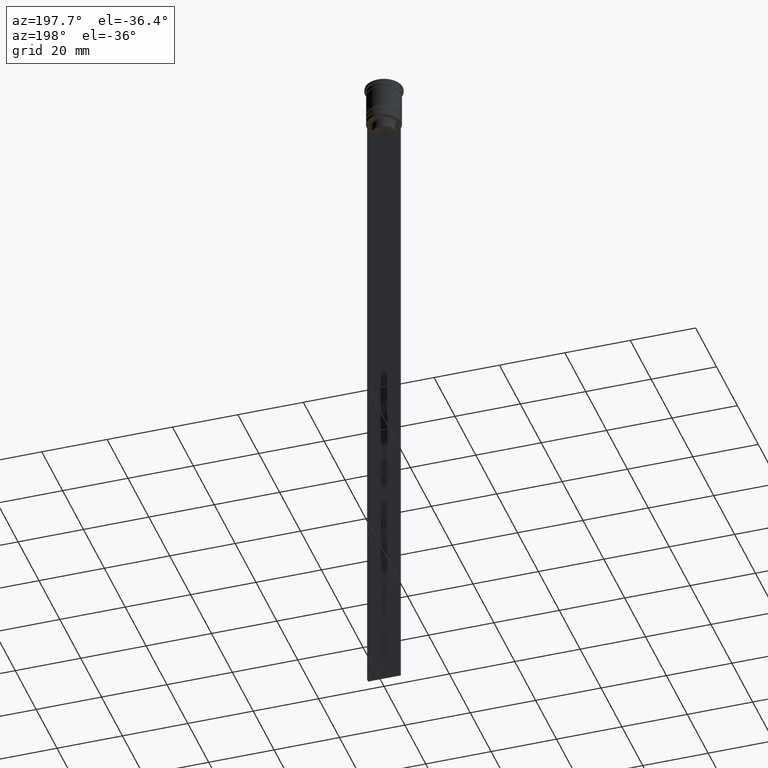
[diagram: clean part render]
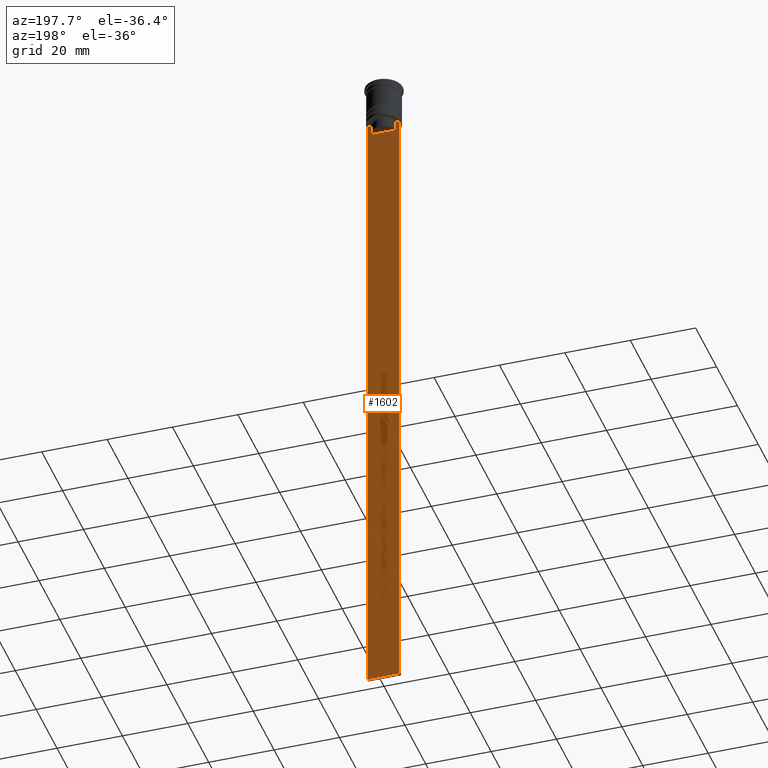
[diagram: same view with one face highlighted and labeled with its STEP entity id]
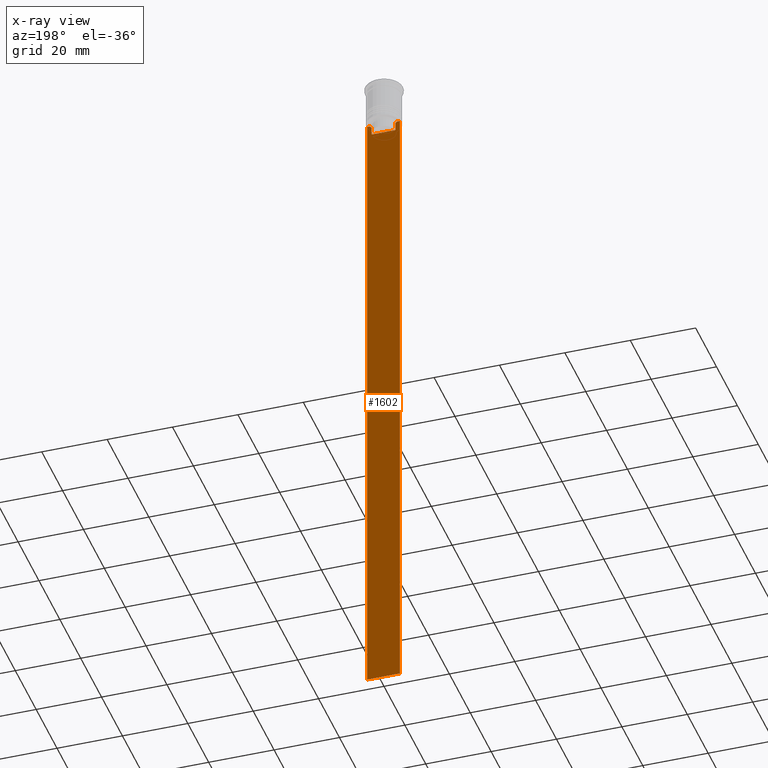
[diagram: x-ray of the same camera — body ghosted, the highlighted face saturated]
A machine part, auxiliary view. The second image highlights one B-rep face of the part: STEP entity #1602.
The next image is the same camera in x-ray: the body ghosted, the highlighted face saturated — about 0% of this face is hidden behind the body in this view.
In plain terms, the highlighted planar face has unit normal (0, -1, -0).
Its self-contained STEP definition (entity closure, byte-faithful):
#11 = DIRECTION ( 'NONE',  ( 0.000000000000000000, -1.000000000000000000, -0.000000000000000000 ) ) ;
#24 = PLANE ( 'NONE',  #2294 ) ;
#39 = VERTEX_POINT ( 'NONE', #414 ) ;
#69 = EDGE_CURVE ( 'NONE', #1440, #2305, #2077, .T. ) ;
#83 = CARTESIAN_POINT ( 'NONE',  ( -3.951794205566887985, 0.4999999999999991673, -12.66675159355373737 ) ) ;
#89 = DIRECTION ( 'NONE',  ( 1.000000000000000000, 0.000000000000000000, 0.000000000000000000 ) ) ;
#114 = CARTESIAN_POINT ( 'NONE',  ( -3.615591237958188042, 0.4999999999999991673, -13.00000000000000178 ) ) ;
#155 = ORIENTED_EDGE ( 'NONE', *, *, #515, .T. ) ;
#188 = CARTESIAN_POINT ( 'NONE',  ( 5.000000000000000000, 0.4999999999999991673, -212.5000000000000284 ) ) ;
#226 = LINE ( 'NONE', #1738, #1457 ) ;
#314 = ORIENTED_EDGE ( 'NONE', *, *, #1156, .T. ) ;
#385 = CARTESIAN_POINT ( 'NONE',  ( 5.000000000000000000, 0.4999999999999991673, -2.450124378879110054 ) ) ;
#401 = DIRECTION ( 'NONE',  ( -1.000000000000000000, 0.000000000000000000, 0.000000000000000000 ) ) ;
#414 = CARTESIAN_POINT ( 'NONE',  ( 3.615591237958188486, 0.4999999999999991673, -15.50000000000000000 ) ) ;
#430 = CARTESIAN_POINT ( 'NONE',  ( 3.783746406711540722, 0.4999999999999991673, -12.83343003979123509 ) ) ;
#487 = VECTOR ( 'NONE', #89, 1000.000000000000000 ) ;
#507 = CARTESIAN_POINT ( 'NONE',  ( -4.119769411022908834, 0.4999999999999991673, -12.50000000000000000 ) ) ;
#515 = EDGE_CURVE ( 'NONE', #525, #2025, #1548, .T. ) ;
#525 = VERTEX_POINT ( 'NONE', #1011 ) ;
#565 = ORIENTED_EDGE ( 'NONE', *, *, #1790, .T. ) ;
#581 = CARTESIAN_POINT ( 'NONE',  ( 3.615591237958188042, 0.4999999999999991673, -13.00000000000000178 ) ) ;
#597 = CARTESIAN_POINT ( 'NONE',  ( 3.951794168112527927, 0.4999999999999991673, -12.66675163073525923 ) ) ;
#623 = VERTEX_POINT ( 'NONE', #1797 ) ;
#647 = DIRECTION ( 'NONE',  ( 0.000000000000000000, 0.000000000000000000, -1.000000000000000000 ) ) ;
#677 = VECTOR ( 'NONE', #1249, 1000.000000000000000 ) ;
#700 = CARTESIAN_POINT ( 'NONE',  ( -4.999999999999999112, 0.4999999999999993339, -12.50000000000000000 ) ) ;
#715 = ORIENTED_EDGE ( 'NONE', *, *, #1830, .T. ) ;
#739 = VERTEX_POINT ( 'NONE', #1134 ) ;
#749 = LINE ( 'NONE', #188, #1614 ) ;
#772 = CARTESIAN_POINT ( 'NONE',  ( 4.119769411022908834, 0.4999999999999991673, -12.50000000000000000 ) ) ;
#810 = CARTESIAN_POINT ( 'NONE',  ( -3.783746449387932920, 0.4999999999999991673, -12.83342999751715752 ) ) ;
#839 = CARTESIAN_POINT ( 'NONE',  ( 4.119769411022908834, 0.4999999999999991673, -12.50000000000000000 ) ) ;
#849 = ORIENTED_EDGE ( 'NONE', *, *, #1321, .T. ) ;
#859 = CARTESIAN_POINT ( 'NONE',  ( 5.000000000000000000, 0.4999999999999991673, -12.50000000000000000 ) ) ;
#869 = ORIENTED_EDGE ( 'NONE', *, *, #2102, .T. ) ;
#875 = CARTESIAN_POINT ( 'NONE',  ( -3.615591237958188042, 0.4999999999999991673, 0.000000000000000000 ) ) ;
#885 = EDGE_CURVE ( 'NONE', #1545, #39, #1004, .T. ) ;
#887 = VECTOR ( 'NONE', #1560, 1000.000000000000000 ) ;
#916 = LINE ( 'NONE', #1846, #2254 ) ;
#1004 = LINE ( 'NONE', #1868, #487 ) ;
#1005 = CARTESIAN_POINT ( 'NONE',  ( -3.615591237958188042, 0.4999999999999991673, -13.00000000000000178 ) ) ;
#1011 = CARTESIAN_POINT ( 'NONE',  ( 5.000000000000000000, 0.4999999999999991673, -12.50000000000000000 ) ) ;
#1039 = LINE ( 'NONE', #875, #677 ) ;
#1062 = LINE ( 'NONE', #859, #887 ) ;
#1082 = EDGE_CURVE ( 'NONE', #2025, #623, #749, .T. ) ;
#1134 = CARTESIAN_POINT ( 'NONE',  ( 3.615591237958188042, 0.4999999999999991673, -13.00000000000000178 ) ) ;
#1136 = CARTESIAN_POINT ( 'NONE',  ( 5.000000000000000000, 0.4999999999999991673, -212.5000000000000284 ) ) ;
#1156 = EDGE_CURVE ( 'NONE', #1398, #1440, #916, .T. ) ;
#1249 = DIRECTION ( 'NONE',  ( 0.000000000000000000, 0.000000000000000000, -1.000000000000000000 ) ) ;
#1285 = B_SPLINE_CURVE_WITH_KNOTS ( 'NONE', 3,
 ( #581, #430, #597, #772 ),
 .UNSPECIFIED., .F., .F.,
 ( 4, 4 ),
 ( 0.01745179617248911533, 0.01816207215777259493 ),
 .UNSPECIFIED. ) ;
#1309 = DIRECTION ( 'NONE',  ( 1.000000000000000000, 0.000000000000000000, 0.000000000000000000 ) ) ;
#1321 = EDGE_CURVE ( 'NONE', #2305, #1545, #1039, .T. ) ;
#1322 = ORIENTED_EDGE ( 'NONE', *, *, #885, .T. ) ;
#1398 = VERTEX_POINT ( 'NONE', #700 ) ;
#1409 = CARTESIAN_POINT ( 'NONE',  ( 5.000000000000000000, 0.4999999999999991673, -2.450124378879110054 ) ) ;
#1440 = VERTEX_POINT ( 'NONE', #507 ) ;
#1457 = VECTOR ( 'NONE', #647, 1000.000000000000000 ) ;
#1465 = FACE_OUTER_BOUND ( 'NONE', #1513, .T. ) ;
#1513 = EDGE_LOOP ( 'NONE', ( #314, #2296, #849, #1322, #565, #869, #715, #155, #2291, #1825 ) ) ;
#1545 = VERTEX_POINT ( 'NONE', #2174 ) ;
#1548 = LINE ( 'NONE', #1409, #1684 ) ;
#1560 = DIRECTION ( 'NONE',  ( 1.000000000000000000, 0.000000000000000000, 0.000000000000000000 ) ) ;
#1568 = DIRECTION ( 'NONE',  ( 0.000000000000000000, 0.000000000000000000, -1.000000000000000000 ) ) ;
#1569 = CARTESIAN_POINT ( 'NONE',  ( 3.615591237958188042, 0.4999999999999991673, 0.000000000000000000 ) ) ;
#1602 = ADVANCED_FACE ( 'NONE', ( #1465 ), #24, .F. ) ;
#1614 = VECTOR ( 'NONE', #401, 1000.000000000000000 ) ;
#1684 = VECTOR ( 'NONE', #1568, 1000.000000000000000 ) ;
#1738 = CARTESIAN_POINT ( 'NONE',  ( -4.999999999999999112, 0.4999999999999991673, -2.450124378879110054 ) ) ;
#1790 = EDGE_CURVE ( 'NONE', #39, #739, #2319, .T. ) ;
#1797 = CARTESIAN_POINT ( 'NONE',  ( -4.999999999999999112, 0.4999999999999991673, -212.5000000000000284 ) ) ;
#1825 = ORIENTED_EDGE ( 'NONE', *, *, #2166, .F. ) ;
#1830 = EDGE_CURVE ( 'NONE', #2256, #525, #1062, .T. ) ;
#1846 = CARTESIAN_POINT ( 'NONE',  ( 5.000000000000000000, 0.4999999999999991673, -12.50000000000000000 ) ) ;
#1868 = CARTESIAN_POINT ( 'NONE',  ( 0.000000000000000000, 0.4999999999999991673, -15.50000000000000000 ) ) ;
#1926 = DIRECTION ( 'NONE',  ( -0.000000000000000000, -0.000000000000000000, 1.000000000000000000 ) ) ;
#2025 = VERTEX_POINT ( 'NONE', #1136 ) ;
#2077 = B_SPLINE_CURVE_WITH_KNOTS ( 'NONE', 3,
 ( #2104, #83, #810, #114 ),
 .UNSPECIFIED., .F., .F.,
 ( 4, 4 ),
 ( 0.007067514914986626831, 0.007777582239375527978 ),
 .UNSPECIFIED. ) ;
#2102 = EDGE_CURVE ( 'NONE', #739, #2256, #1285, .T. ) ;
#2104 = CARTESIAN_POINT ( 'NONE',  ( -4.119769411022908834, 0.4999999999999991673, -12.50000000000000000 ) ) ;
#2166 = EDGE_CURVE ( 'NONE', #1398, #623, #226, .T. ) ;
#2174 = CARTESIAN_POINT ( 'NONE',  ( -3.615591237958188486, 0.4999999999999991673, -15.50000000000000000 ) ) ;
#2243 = VECTOR ( 'NONE', #1926, 1000.000000000000000 ) ;
#2254 = VECTOR ( 'NONE', #1309, 1000.000000000000000 ) ;
#2256 = VERTEX_POINT ( 'NONE', #839 ) ;
#2291 = ORIENTED_EDGE ( 'NONE', *, *, #1082, .T. ) ;
#2294 = AXIS2_PLACEMENT_3D ( 'NONE', #385, #11, #2336 ) ;
#2296 = ORIENTED_EDGE ( 'NONE', *, *, #69, .T. ) ;
#2305 = VERTEX_POINT ( 'NONE', #1005 ) ;
#2319 = LINE ( 'NONE', #1569, #2243 ) ;
#2336 = DIRECTION ( 'NONE',  ( 0.000000000000000000, 0.000000000000000000, -1.000000000000000000 ) ) ;